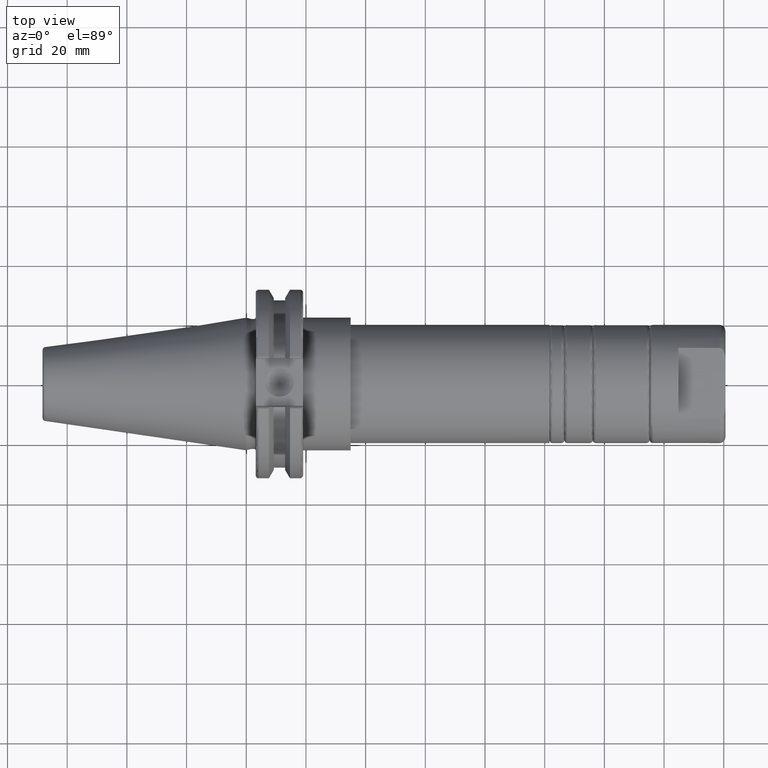
[diagram: clean part render]
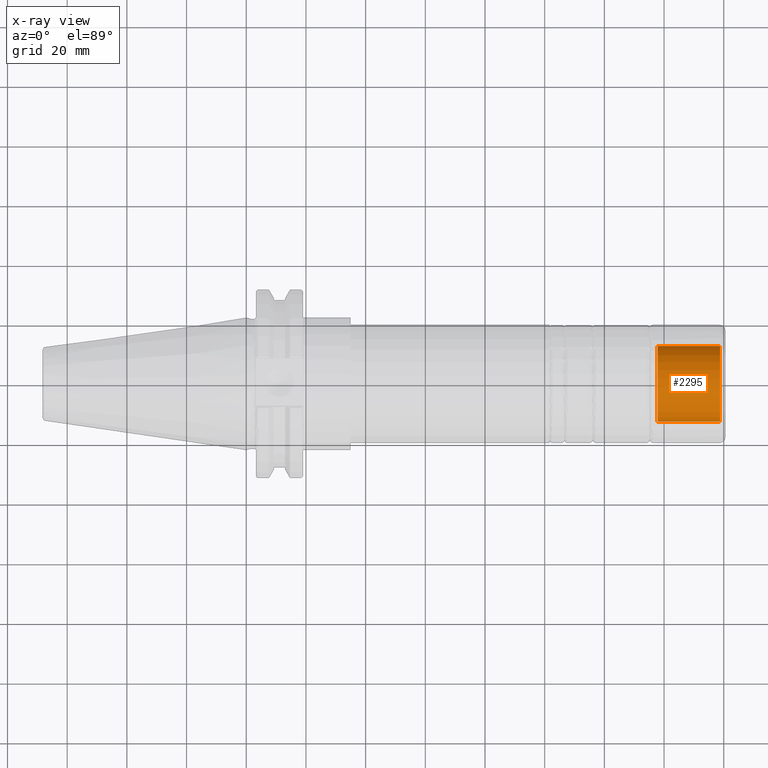
[diagram: x-ray — body ghosted, one internal face saturated and labeled with its STEP entity id]
A machine part, top view, then the same camera in x-ray: the body is ghosted and one INTERNAL B-rep face — a face not visible from any outside direction — is saturated and labeled: STEP entity #2295.
In plain terms, the highlighted cylindrical surface (bore or boss wall) has radius 12.7 mm, axis along (1, 0, 0).
Its self-contained STEP definition (entity closure, byte-faithful):
#575=CIRCLE('',#2610,12.7);
#576=CIRCLE('',#2611,12.7);
#708=CYLINDRICAL_SURFACE('',#2609,12.7);
#739=FACE_OUTER_BOUND('',#852,.T.);
#852=EDGE_LOOP('',(#1711,#1712,#1713,#1714));
#986=LINE('',#3742,#1118);
#1118=VECTOR('',#2945,12.7);
#1250=VERTEX_POINT('',#3739);
#1251=VERTEX_POINT('',#3741);
#1433=EDGE_CURVE('',#1250,#1250,#575,.T.);
#1434=EDGE_CURVE('',#1250,#1251,#986,.T.);
#1435=EDGE_CURVE('',#1251,#1251,#576,.T.);
#1711=ORIENTED_EDGE('',*,*,#1433,.F.);
#1712=ORIENTED_EDGE('',*,*,#1434,.T.);
#1713=ORIENTED_EDGE('',*,*,#1435,.T.);
#1714=ORIENTED_EDGE('',*,*,#1434,.F.);
#2295=ADVANCED_FACE('',(#739),#708,.T.);
#2609=AXIS2_PLACEMENT_3D('',#3738,#2941,#2942);
#2610=AXIS2_PLACEMENT_3D('',#3740,#2943,#2944);
#2611=AXIS2_PLACEMENT_3D('',#3743,#2946,#2947);
#2941=DIRECTION('center_axis',(1.,0.,0.));
#2942=DIRECTION('ref_axis',(0.,1.,0.));
#2943=DIRECTION('center_axis',(1.,0.,0.));
#2944=DIRECTION('ref_axis',(0.,0.,-1.));
#2945=DIRECTION('',(-1.,0.,0.));
#2946=DIRECTION('center_axis',(1.,0.,0.));
#2947=DIRECTION('ref_axis',(0.,0.,-1.));
#3738=CARTESIAN_POINT('Origin',(148.3,0.,0.));
#3739=CARTESIAN_POINT('',(158.75,-12.7,-1.55530143491714E-15));
#3740=CARTESIAN_POINT('Origin',(158.75,0.,0.));
#3741=CARTESIAN_POINT('',(137.85,-12.7,-1.55530143491714E-15));
#3742=CARTESIAN_POINT('',(148.3,-12.7,-1.55530143491714E-15));
#3743=CARTESIAN_POINT('Origin',(137.85,0.,0.));